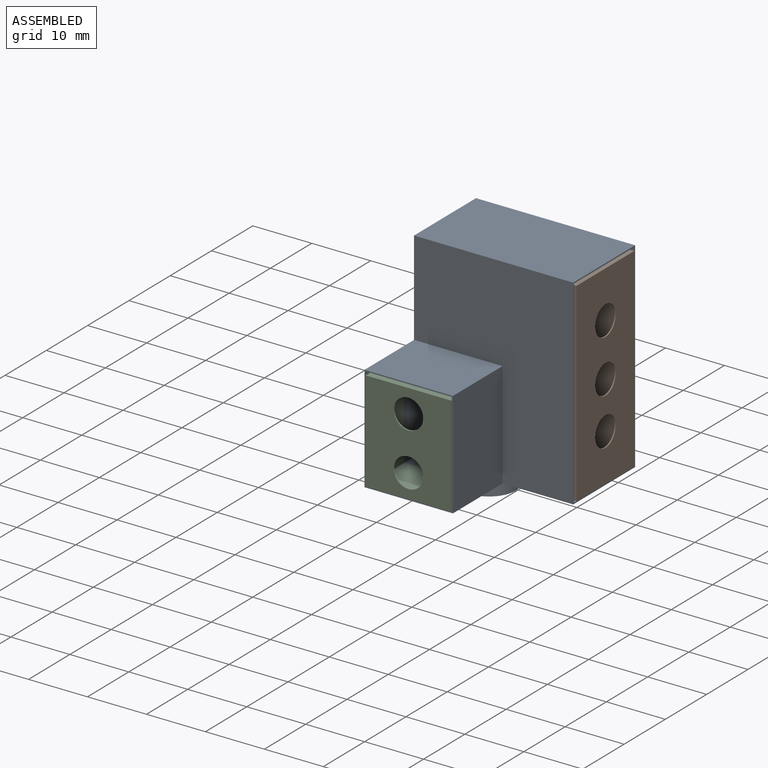
[diagram: assembled view]
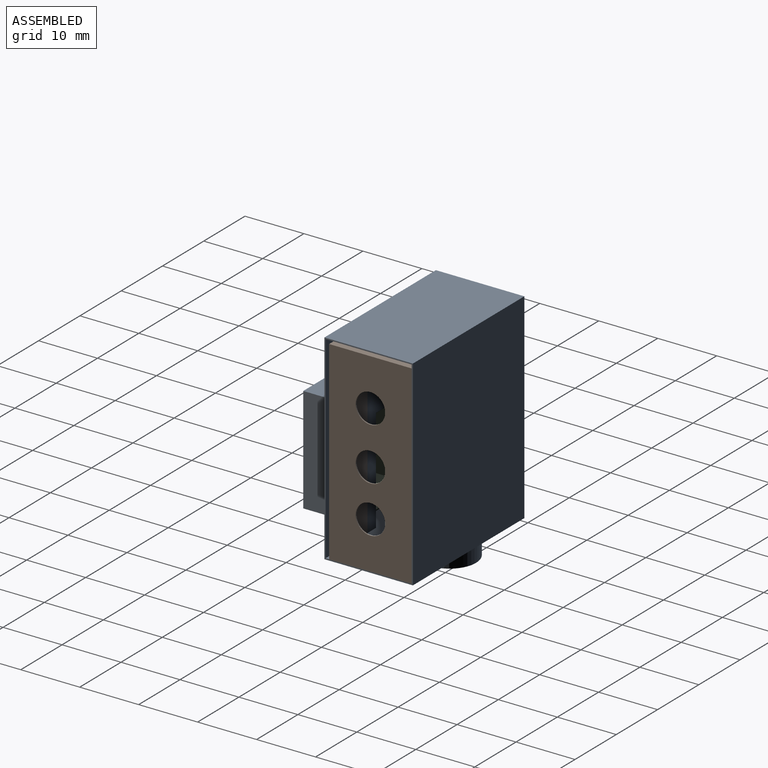
[diagram: assembled view, second angle]
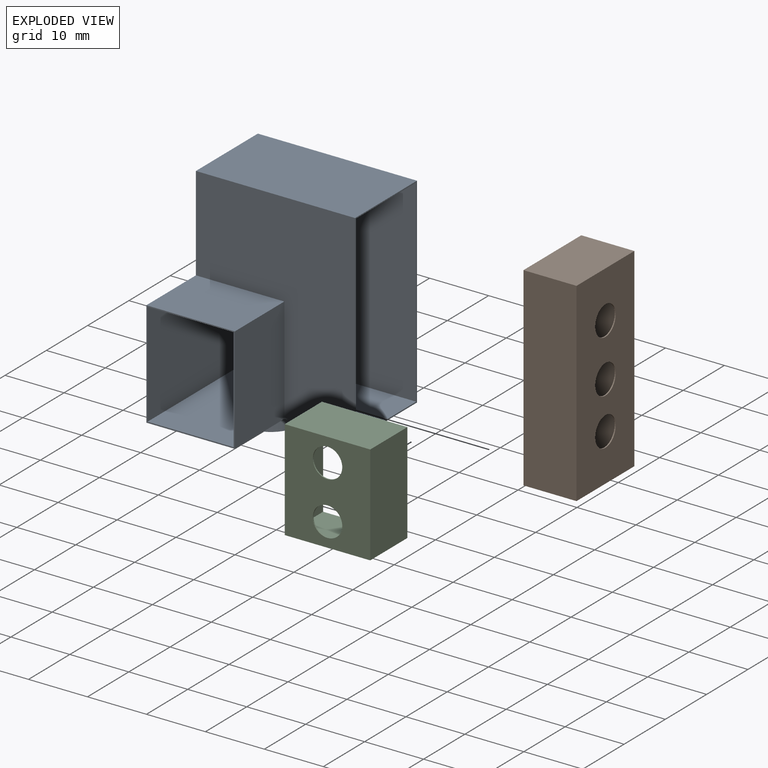
[diagram: exploded view]
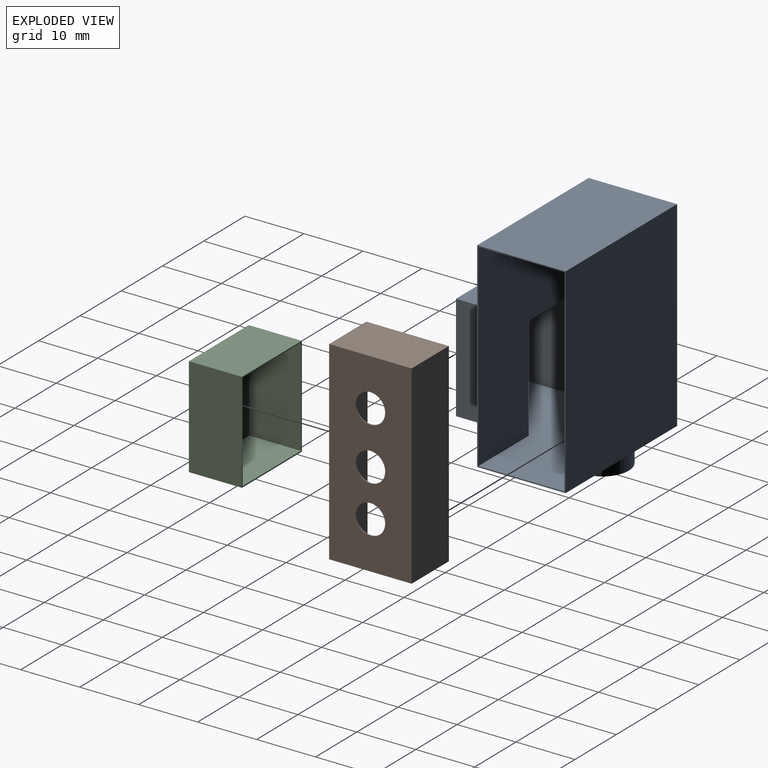
[diagram: exploded view, second angle]
ASSEMBLY  parts=3 mates=2
PART A: 19 faces, bbox 27x27x38.8 mm
  f0: cylinder r=4.5mm len=9mm, axis (0,0,1), area 135.7mm2, adj f2,f10
  f1: cylinder r=4mm len=8mm, axis (0,0,1), area 125.7mm2, adj f2,f3
  f2: plane 9x9mm, normal (0,0,-1), area 13.4mm2, adj f0,f1
  f3: plane 26.8x26.8mm, normal (0,0,1), area 519.1mm2, adj f1,f7,f8,f12,f15,f16,f18
  f4: plane 15x12mm, normal (0,0,1), area 180mm2, adj f5,f8,f9,f13
  f5: plane 18x12mm, normal (1,0,0), area 216mm2, adj f4,f8,f10,f13
  f6: plane 14.6x12.2mm, normal (0,0,-1), area 178.1mm2, adj f7,f8,f15,f18
  f7: plane 17.6x12.2mm, normal (-1,0,0), area 214.7mm2, adj f3,f6,f8,f15
  f8: plane 18x15mm, normal (0,-1,0), area 13mm2, adj f3,f4,f5,f6,f7,f9,f10,f18
  f9: plane 34x27mm, normal (-1,0,0), area 726mm2, adj f4,f8,f10,f11,f13,f17
  f10: plane 27x27mm, normal (0,0,-1), area 521.4mm2, adj f0,f5,f8,f9,f11,f12,f13
  f11: plane 34x27mm, normal (0,1,0), area 918mm2, adj f9,f10,f12,f17
  f12: plane 34x15mm, normal (1,0,0), area 19.4mm2, adj f3,f10,f11,f13,f14,f15,f16,f17
  f13: plane 34x27mm, normal (0,-1,0), area 648mm2, adj f4,f5,f9,f10,f12,f17
  f14: plane 26.8x14.6mm, normal (0,0,-1), area 391.3mm2, adj f12,f15,f16,f18
  f15: plane 33.6x26.8mm, normal (0,1,0), area 643.5mm2, adj f3,f6,f7,f12,f14,f18
  f16: plane 33.6x26.8mm, normal (0,-1,0), area 900.5mm2, adj f3,f12,f14,f18
  f17: plane 27x15mm, normal (0,0,1), area 405mm2, adj f9,f11,f12,f13
  f18: plane 33.6x26.8mm, normal (1,0,0), area 705.3mm2, adj f3,f6,f8,f14,f15,f16
PART B: 14 faces, bbox 9x14x33 mm
  f0: plane 33x14mm, normal (-1,0,0), area 18.6mm2, adj f1,f2,f3,f4,f6,f7,f8,f9
  f1: plane 14x9mm, normal (0,0,1), area 126mm2, adj f0,f2,f4,f5
  f2: plane 33x9mm, normal (0,-1,0), area 297mm2, adj f0,f1,f3,f5
  f3: plane 14x9mm, normal (0,0,-1), area 126mm2, adj f0,f2,f4,f5
  f4: plane 33x9mm, normal (0,1,0), area 297mm2, adj f0,f1,f3,f5
  f5: plane 33x14mm, normal (1,0,0), area 403.1mm2, adj f1,f2,f3,f4,f11,f12,f13
  f6: plane 13.6x8.8mm, normal (0,0,-1), area 119.7mm2, adj f0,f7,f9,f10
  f7: plane 32.6x8.8mm, normal (0,1,0), area 286.9mm2, adj f0,f6,f8,f10
  f8: plane 13.6x8.8mm, normal (0,0,1), area 119.7mm2, adj f0,f7,f9,f10
  f9: plane 32.6x8.8mm, normal (0,-1,0), area 286.9mm2, adj f0,f6,f8,f10
  f10: plane 32.6x13.6mm, normal (-1,0,0), area 384.5mm2, adj f6,f7,f8,f9,f11,f12,f13
  f11: cylinder r=2.5mm len=5mm, axis (1,0,0), area 3.1mm2, adj f5,f10
  f12: cylinder r=2.5mm len=5mm, axis (1,0,0), area 3.1mm2, adj f5,f10
  f13: cylinder r=2.5mm len=5mm, axis (1,0,0), area 3.1mm2, adj f5,f10
PART C: 13 faces, bbox 9x14.5x17 mm
  f0: plane 17x14.5mm, normal (1,0,0), area 207.2mm2, adj f3,f4,f5,f6,f11,f12
  f1: plane 16.6x14.1mm, normal (-1,0,0), area 194.8mm2, adj f7,f8,f9,f10,f11,f12
  f2: plane 17x14.5mm, normal (-1,0,0), area 12.4mm2, adj f3,f4,f5,f6,f7,f8,f9,f10
  f3: plane 14.5x9mm, normal (0,0,1), area 130.5mm2, adj f0,f2,f4,f6
  f4: plane 17x9mm, normal (0,-1,0), area 153mm2, adj f0,f2,f3,f5
  f5: plane 14.5x9mm, normal (0,0,-1), area 130.5mm2, adj f0,f2,f4,f6
  f6: plane 17x9mm, normal (0,1,0), area 153mm2, adj f0,f2,f3,f5
  f7: plane 14.1x8.8mm, normal (0,0,-1), area 124.1mm2, adj f1,f2,f8,f10
  f8: plane 16.6x8.8mm, normal (0,1,0), area 146.1mm2, adj f1,f2,f7,f9
  f9: plane 14.1x8.8mm, normal (0,0,1), area 124.1mm2, adj f1,f2,f8,f10
  f10: plane 16.6x8.8mm, normal (0,-1,0), area 146.1mm2, adj f1,f2,f7,f9
  f11: cylinder r=2.5mm len=5mm, axis (1,0,0), area 3.1mm2, adj f0,f1
  f12: cylinder r=2.5mm len=5mm, axis (1,0,0), area 3.1mm2, adj f0,f1
PLACE A t=(-1.08,5.66,-3.71)mm
PLACE B t=(29.39,24.45,15.54)mm
PLACE C rot(axis=(0,0,-1),90deg) t=(3.4,-11.35,-18.52)mm
MATE fastened C.f0 <-> A.f8  axis (0,-1,0) through (-0.88,-11.35,-21.93)mm
MATE fastened B.f5 <-> A.f12  axis (1,0,0) through (25.92,15.45,-21.93)mm
